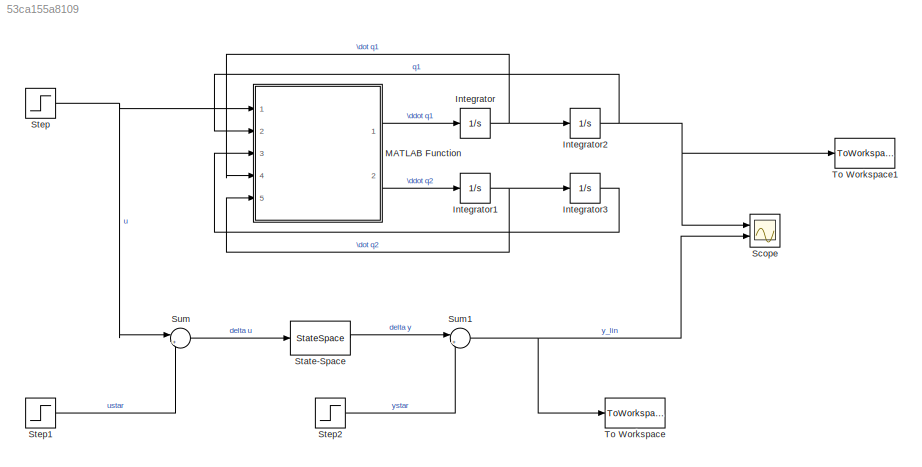
MODEL slx_53ca155a8109
KIND model
CONFIG AbsTol = auto
CONFIG EnableMultiTasking = off
CONFIG FixedStep = auto
CONFIG MaxStep = auto
CONFIG MinStep = auto
CONFIG RelTol = 1e-3
CONFIG SampleTimeConstraint = Unconstrained
CONFIG Solver = VariableStepAuto
CONFIG SolverName = VariableStepAuto
CONFIG StartTime = 0.0
CONFIG StopTime = 400
BLOCK [Integrator] Integrator
  Ports = [1, 1]
BLOCK [Integrator] Integrator1
  Ports = [1, 1]
BLOCK [Integrator] Integrator2
  Ports = [1, 1]
BLOCK [Integrator] Integrator3
  Ports = [1, 1]
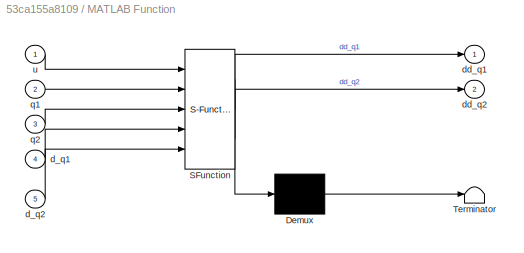
BLOCK [SubSystem] MATLAB Function
  ErrorFcn = Stateflow.Translate.translate
  PermitHierarchicalResolution = ExplicitOnly
  Ports = [5, 2]
  RequestExecContextInheritance = off
  SFBlockType = MATLAB Function
  TreatAsAtomicUnit = on
BLOCK [Demux] MATLAB Function/ Demux 
  Outputs = 1
  Ports = [1, 1]
BLOCK [S-Function] MATLAB Function/ SFunction 
  EnableBusSupport = on
  FunctionName = sf_sfun
  PortCounts = [5 3]
  Ports = [5, 3]
  SFcnIsStateOwnerBlock = off
  SFunctionDeploymentMode = off
  Tag = Stateflow S-Function tema2_mdl 2
BLOCK [Terminator] MATLAB Function/ Terminator 
BLOCK [Inport] MATLAB Function/d_q1
  IconDisplay = Port number
  Port = 4
BLOCK [Inport] MATLAB Function/d_q2
  IconDisplay = Port number
  Port = 5
BLOCK [Outport] MATLAB Function/dd_q1
  IconDisplay = Port number
BLOCK [Outport] MATLAB Function/dd_q2
  IconDisplay = Port number
  Port = 2
BLOCK [Inport] MATLAB Function/q1
  IconDisplay = Port number
  Port = 2
BLOCK [Inport] MATLAB Function/q2
  IconDisplay = Port number
  Port = 3
BLOCK [Inport] MATLAB Function/u
  IconDisplay = Port number
BLOCK [Scope] Scope
  Floating = off
  NumInputPorts = 2
  Ports = [2]
  ScopeSpecificationString = Simulink.scopes.TimeScopeBlockCfg('CurrentConfiguration', extmgr.ConfigurationSet(extmgr.Configuration('Core','General UI',true),extmgr.Configuration('Core','Source UI',true),extmgr.Configuration('Sources','WiredSimulink',true),extmgr.Configuration('Visuals','Time Domain',true,'SerializedDisplays',{struct('MinYLimReal','-4.04572','MaxYLimReal','36.41144','YLabelReal','','MinYLimMag','0.00000','Max...<+1395ch>
BLOCK [StateSpace] State-Space
  A = sys.A
  B = sys.B
  C = sys.C
  D = sys.D
  InitialCondition = [0;0;0;0] - xstar
  Ports = [1, 1]
BLOCK [Step] Step
  After = r
  SampleTime = 0
  Time = 0
BLOCK [Step] Step1
  After = ustar
  SampleTime = 0
  Time = 0
BLOCK [Step] Step2
  After = ystar
  SampleTime = 0
  Time = 0
BLOCK [Sum] Sum
  IconShape = round
  InputSameDT = off
  Inputs = |+-
  OutDataTypeStr = Inherit: Inherit via internal rule
  Ports = [2, 1]
  SaturateOnIntegerOverflow = off
BLOCK [Sum] Sum1
  IconShape = round
  InputSameDT = off
  Inputs = |++
  OutDataTypeStr = Inherit: Inherit via internal rule
  Ports = [2, 1]
  SaturateOnIntegerOverflow = off
BLOCK [ToWorkspace] To Workspace
  FixptAsFi = on
  MaxDataPoints = inf
  Ports = [1]
  SampleTime = -1
  SaveFormat = Timeseries
  VariableName = y_lin1
BLOCK [ToWorkspace] To Workspace1
  FixptAsFi = on
  MaxDataPoints = inf
  Ports = [1]
  SampleTime = -1
  SaveFormat = Timeseries
  VariableName = y_nl1
NET Integrator1:1 -> Integrator3:1, MATLAB Function:5
NET Integrator2:1 -> MATLAB Function:2, Scope:1, To Workspace1:1
LINE Integrator3:1 -> MATLAB Function:3
NET Integrator:1 -> Integrator2:1, MATLAB Function:4
LINE MATLAB Function:1 -> Integrator:1
LINE MATLAB Function:2 -> Integrator1:1
LINE State-Space:1 -> Sum1:1
LINE Step1:1 -> Sum:2
LINE Step2:1 -> Sum1:2
NET Step:1 -> MATLAB Function:1, Sum:1
NET Sum1:1 -> Scope:2, To Workspace:1
LINE Sum:1 -> State-Space:1
note: NET lines group one-source signal fan-out (src -> all destinations, sorted); 1:1 wires keep LINE
CHART MATLAB Function states=1 transitions=1
  STATE_LABEL 'eML_blk_kernel()'
  STATE_LABEL 'SCRIPT:\nfunction [dd_q1,dd_q2] = fcn(u,q1,q2,d_q1,d_q2)\nm = 5.1;\ng = 10;\nL = 1.56;\nzeta = 7.64;\nk = 0.25;\nJ = 2.77; \nI = 1.89;\nM = 2.82;\n\ndd_q1 = (u + k*(q2-q1) - zeta*d_q1)/J;\ndd_q2 = (-M*g*L*sin(q2) - k*(q2-q1) - zeta*d_q2)/I;\n\n\nend\n\n'
